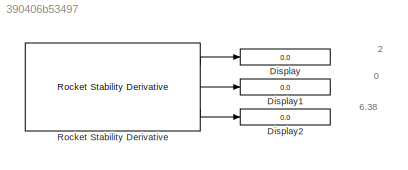
MODEL slx_390406b53497
KIND model
BLOCK [Display] Display
  Decimation = 1
  Ports = [1]
BLOCK [Display] Display1
  Decimation = 1
  Ports = [1]
BLOCK [Display] Display2
  Decimation = 1
  Ports = [1]
BLOCK [Reference] Rocket Stability Derivative  REF=rocket_angular_flight_library/Rocket Stability Derivative
  Ports = [0, 3]
  SourceBlock = rocket_angular_flight_library/Rocket Stability Derivative
  SourceType = SubSystem
ANNOTATION (root): 0
ANNOTATION (root): 2
ANNOTATION (root): 6.38
LINE Rocket Stability Derivative:1 -> Display:1
LINE Rocket Stability Derivative:2 -> Display1:1
LINE Rocket Stability Derivative:3 -> Display2:1
